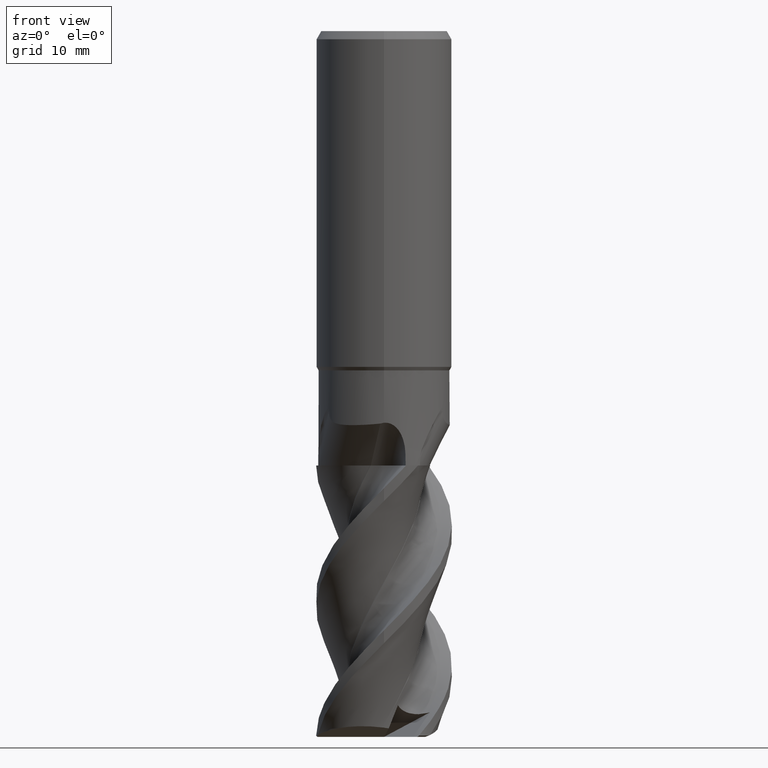
[diagram: clean part render]
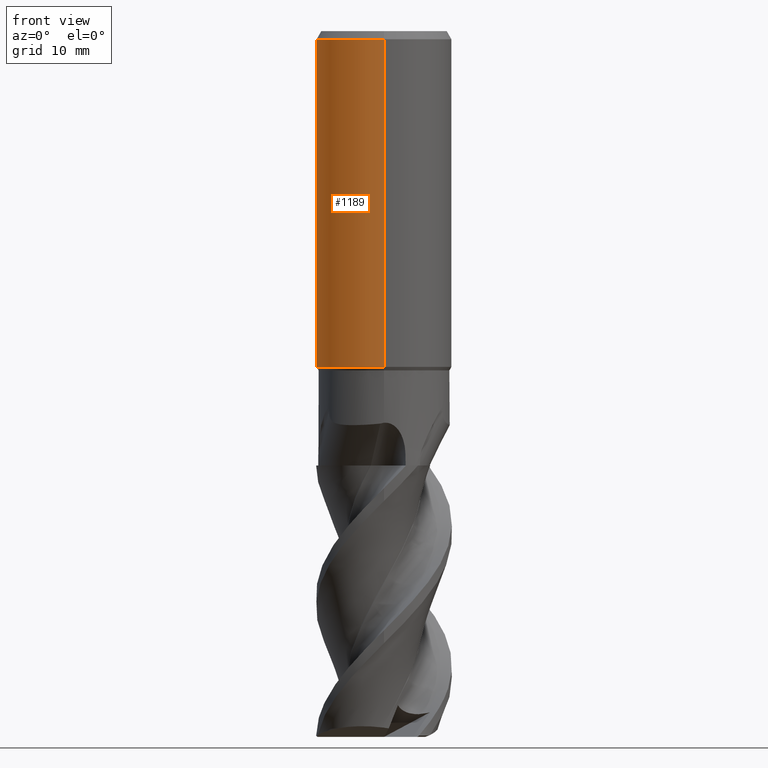
[diagram: same view with one face highlighted and labeled with its STEP entity id]
A machine part, front view. The second image highlights one B-rep face of the part: STEP entity #1189.
In plain terms, the highlighted cylindrical surface (partial cylindrical patch) has radius 10 mm, axis along (-0, -0, 1).
Its self-contained STEP definition (entity closure, byte-faithful):
#495=VERTEX_POINT('',#1353);
#499=EDGE_CURVE('',#747,#719,#1357,.T.);
#543=VERTEX_POINT('',#1405);
#605=EDGE_CURVE('',#543,#1059,#1477,.T.);
#611=VERTEX_POINT('',#1483);
#617=EDGE_CURVE('',#625,#543,#1489,.T.);
#625=VERTEX_POINT('',#1497);
#633=EDGE_CURVE('',#495,#1097,#1505,.T.);
#661=VERTEX_POINT('',#1535);
#671=VERTEX_POINT('',#1545);
#707=EDGE_CURVE('',#1209,#625,#1584,.T.);
#719=VERTEX_POINT('',#1596);
#747=VERTEX_POINT('',#1628);
#945=EDGE_CURVE('',#1097,#1209,#1844,.T.);
#951=EDGE_CURVE('',#671,#747,#1850,.T.);
#959=EDGE_CURVE('',#495,#611,#1858,.T.);
#1015=VERTEX_POINT('',#1920);
#1059=VERTEX_POINT('',#1969);
#1091=VERTEX_POINT('',#2001);
#1097=VERTEX_POINT('',#2007);
#1099=EDGE_CURVE('',#1155,#671,#2009,.T.);
#1113=EDGE_CURVE('',#1015,#1091,#2024,.T.);
#1131=EDGE_CURVE('',#719,#611,#2044,.T.);
#1135=EDGE_CURVE('',#661,#1015,#2048,.T.);
#1155=VERTEX_POINT('',#2068);
#1189=ADVANCED_FACE('',(#2110,#2111),#2112,.T.);
#1197=EDGE_CURVE('',#1091,#661,#2121,.T.);
#1209=VERTEX_POINT('',#2133);
#1225=EDGE_CURVE('',#1059,#1155,#2150,.T.);
#1353=CARTESIAN_POINT('',(1.22460635382238E-015,-10.0,-49.48));
#1357=ELLIPSE('',#2927,14.142135623731,10.0);
#1405=CARTESIAN_POINT('',(-5.72363520850167,8.2,-19.5));
#1477=LINE('',#4191,#4192);
#1483=CARTESIAN_POINT('',(0.0,10.0,-49.48));
#1489=ELLIPSE('',#4213,14.1421356237309,10.0);
#1497=CARTESIAN_POINT('',(-1.22460635382238E-015,10.0,-17.7));
#1505=LINE('',#4242,#4243);
#1535=CARTESIAN_POINT('',(-0.0316227370731222,9.99995,-36.2160908087156));
#1545=CARTESIAN_POINT('',(-0.0316227370732062,9.99995,-32.8094136196901));
#1584=LINE('',#4516,#4517);
#1596=CARTESIAN_POINT('',(-1.22460635382238E-015,10.0,-32.3));
#1628=CARTESIAN_POINT('',(-0.0316227370748053,9.99994999999999,-32.29995));
#1844=CIRCLE('',#6859,10.0);
#1850=LINE('',#6866,#6867);
#1858=CIRCLE('',#6940,10.0);
#1920=CARTESIAN_POINT('',(-0.0316227370732325,9.99995,-33.3020962430548));
#1969=CARTESIAN_POINT('',(-5.72363520850167,8.2,-30.5));
#2001=CARTESIAN_POINT('',(-2.97121348113491,9.54839727124517,-34.7513633984255));
#2007=CARTESIAN_POINT('',(1.22460635382238E-015,-10.0,-1.2));
#2009=B_SPLINE_CURVE_WITH_KNOTS('',3,(#8501,#8502,#8503,#8504,#8505,#8506,#8507,#8508,#8509,#8510,#8511,#8512,#8513,#8514,#8515,#8516,#8517,#8518,#8519,#8520,#8521,#8522,#8523,#8524),.UNSPECIFIED.,.F.,.F.,(4,2,2,2,2,2,2,2,2,2,2,4),(7.46791014288792,7.96541256832062,8.46291499375333,8.96041741918603,9.45791984461874,9.95542227005144,10.4516566009806,10.9478909319097,11.4441252628388,11.940359593768,12.4400189088528,12.9396782239377),.UNSPECIFIED.);
#2024=ELLIPSE('',#8543,11.1492843204286,10.0);
#2044=LINE('',#8644,#8645);
#2048=LINE('',#8650,#8651);
#2068=CARTESIAN_POINT('',(-1.37837352153135,9.90454877493878,-32.2045487749388));
#2110=FACE_OUTER_BOUND('',#9094,.T.);
#2111=FACE_BOUND('',#9095,.T.);
#2112=CYLINDRICAL_SURFACE('',#9096,10.0);
#2121=B_SPLINE_CURVE_WITH_KNOTS('',3,(#9372,#9373,#9374,#9375,#9376,#9377,#9378,#9379,#9380,#9381,#9382,#9383,#9384,#9385,#9386,#9387),.UNSPECIFIED.,.F.,.F.,(4,2,2,2,2,2,2,4),(13.0822518574034,13.7710650298006,14.4599721384425,15.1488792470844,15.8377863557263,16.5266934643682,17.2143253597037,17.9019572550391),.UNSPECIFIED.);
#2133=CARTESIAN_POINT('',(0.0,10.0,-1.2));
#2150=ELLIPSE('',#9486,14.142135623731,10.0);
#2927=AXIS2_PLACEMENT_3D('',#9846,#9847,#9848);
#4191=CARTESIAN_POINT('',(-5.72363520850167,8.2,-25.0));
#4192=VECTOR('',#10030,1.0);
#4213=AXIS2_PLACEMENT_3D('',#10037,#10038,#10039);
#4242=CARTESIAN_POINT('',(1.22460635382238E-015,-10.0,-25.34));
#4243=VECTOR('',#10048,1.0);
#4516=CARTESIAN_POINT('',(-1.22460635382238E-015,10.0,-25.34));
#4517=VECTOR('',#10143,1.0);
#6859=AXIS2_PLACEMENT_3D('',#10415,#10416,#10417);
#6866=CARTESIAN_POINT('',(-0.0316227370732325,9.99995,-32.8481638361144));
#6867=VECTOR('',#10418,1.0);
#6940=AXIS2_PLACEMENT_3D('',#10419,#10420,#10421);
#8501=CARTESIAN_POINT('',(-2.25082235878216,9.74339769840102,-29.6979143059435));
#8502=CARTESIAN_POINT('',(-2.28428747604402,9.73566692148997,-29.868085013128));
#8503=CARTESIAN_POINT('',(-2.30023075964271,9.73185174837726,-30.0393774783232));
#8504=CARTESIAN_POINT('',(-2.30023075964271,9.73185174837726,-30.371045761945));
#8505=CARTESIAN_POINT('',(-2.28428747604402,9.73566692148997,-30.5423382271401));
#8506=CARTESIAN_POINT('',(-2.2173572415203,9.75112847531207,-30.8826796415091));
#8507=CARTESIAN_POINT('',(-2.16638705772463,9.76276094609619,-31.0517325196036));
#8508=CARTESIAN_POINT('',(-2.03184405267153,9.79164662722868,-31.3756449797371));
#8509=CARTESIAN_POINT('',(-1.94816459135741,9.80888962566933,-31.5307739246349));
#8510=CARTESIAN_POINT('',(-1.75498328939114,9.845287939757,-31.8175167437536));
#8511=CARTESIAN_POINT('',(-1.6454670217229,9.864399219561,-31.9491264862566));
#8512=CARTESIAN_POINT('',(-1.41245757243044,9.9004457650828,-32.1817869276279));
#8513=CARTESIAN_POINT('',(-1.28096853055741,9.91866458537594,-32.2909300875257));
#8514=CARTESIAN_POINT('',(-0.994483240421609,9.95147178149252,-32.4834771683638));
#8515=CARTESIAN_POINT('',(-0.839491019745936,9.96601953281724,-32.5668940012736));
#8516=CARTESIAN_POINT('',(-0.515949704964199,9.98799711651423,-32.7009762826222));
#8517=CARTESIAN_POINT('',(-0.347124906267056,9.99541714560543,-32.7517510345697));
#8518=CARTESIAN_POINT('',(-0.00741593589887704,10.0014401272571,-32.8183881929454));
#8519=CARTESIAN_POINT('',(0.163471348702014,10.0000319031412,-32.8342357388639));
#8520=CARTESIAN_POINT('',(0.495256413593663,9.98911712923564,-32.8342357388639));
#8521=CARTESIAN_POINT('',(0.666997772528588,9.97919681274295,-32.8181726138028));
#8522=CARTESIAN_POINT('',(1.00787833561816,9.95054954847196,-32.7509513896908));
#8523=CARTESIAN_POINT('',(1.17702218704656,9.93183333834353,-32.6998122829361));
#8524=CARTESIAN_POINT('',(1.33893612023062,9.90995711726049,-32.6324280132421));
#8543=AXIS2_PLACEMENT_3D('',#10569,#10570,#10571);
#8644=CARTESIAN_POINT('',(-1.22460635382238E-015,10.0,-25.34));
#8645=VECTOR('',#10601,1.0);
#8650=CARTESIAN_POINT('',(-0.0316227370732325,9.99995,-32.8481638361144));
#8651=VECTOR('',#10602,1.0);
#9094=EDGE_LOOP('',(#10711,#10712,#10713,#10714,#10715,#10716,#10717,#10718,#10719,#10720,#10721));
#9095=EDGE_LOOP('',(#10722,#10723,#10724));
#9096=AXIS2_PLACEMENT_3D('',#10725,#10726,#10727);
#9372=CARTESIAN_POINT('',(-3.064465144062,9.51887878801012,-34.619424718489));
#9373=CARTESIAN_POINT('',(-2.93207371977169,9.56150028927415,-34.8159031682856));
#9374=CARTESIAN_POINT('',(-2.78221330578179,9.60659017651691,-34.9961024951607));
#9375=CARTESIAN_POINT('',(-2.46338958635805,9.6932453227427,-35.3150755115873));
#9376=CARTESIAN_POINT('',(-2.2831818263397,9.73793998544854,-35.4650893942677));
#9377=CARTESIAN_POINT('',(-1.89006279967406,9.82181536300732,-35.7302027828549));
#9378=CARTESIAN_POINT('',(-1.67714982712961,9.86092398085721,-35.8453225636327));
#9379=CARTESIAN_POINT('',(-1.23181074870496,9.92639388610597,-36.0307928721989));
#9380=CARTESIAN_POINT('',(-0.998993982717713,9.95276140285555,-36.1012897100344));
#9381=CARTESIAN_POINT('',(-0.529421014680235,9.98875176931193,-36.1940203935694));
#9382=CARTESIAN_POINT('',(-0.292657869671584,9.99835406091206,-36.2162270569585));
#9383=CARTESIAN_POINT('',(0.166179351363574,10.0012460192168,-36.2162270569585));
#9384=CARTESIAN_POINT('',(0.402624036141334,9.99465558216676,-36.1941010422937));
#9385=CARTESIAN_POINT('',(0.871759467236618,9.96470178941006,-36.1015888545499));
#9386=CARTESIAN_POINT('',(1.10445661059111,9.94135916450407,-36.0312284120675));
#9387=CARTESIAN_POINT('',(1.32707291318415,9.91155272815985,-35.9386212624839));
#9486=AXIS2_PLACEMENT_3D('',#10754,#10755,#10756);
#9846=CARTESIAN_POINT('',(0.0,0.0,-22.3));
#9847=DIRECTION('',(0.0,-0.707106781186548,-0.707106781186548));
#9848=DIRECTION('',(0.0,0.707106781186547,-0.707106781186547));
#10030=DIRECTION('',(0.0,0.0,-1.0));
#10037=CARTESIAN_POINT('',(0.0,0.0,-27.7));
#10038=DIRECTION('',(0.0,-0.707106781186547,0.707106781186548));
#10039=DIRECTION('',(0.0,0.707106781186548,0.707106781186547));
#10048=DIRECTION('',(-0.0,-0.0,1.0));
#10143=DIRECTION('',(0.0,0.0,-1.0));
#10415=CARTESIAN_POINT('',(0.0,0.0,-1.2));
#10416=DIRECTION('',(0.0,0.0,-1.0));
#10417=DIRECTION('',(0.0,1.0,0.0));
#10418=DIRECTION('',(-0.0,-0.0,1.0));
#10419=CARTESIAN_POINT('',(0.0,0.0,-49.48));
#10420=DIRECTION('',(0.0,0.0,-1.0));
#10421=DIRECTION('',(0.0,1.0,0.0));
#10569=CARTESIAN_POINT('',(0.0,0.0,-33.2865057074349));
#10570=DIRECTION('',(-0.442195774284071,0.0,0.896918556617774));
#10571=DIRECTION('',(0.896918556617774,-0.0,0.442195774284071));
#10601=DIRECTION('',(0.0,0.0,-1.0));
#10602=DIRECTION('',(-0.0,-0.0,1.0));
#10711=ORIENTED_EDGE('',*,*,#707,.T.);
#10712=ORIENTED_EDGE('',*,*,#617,.T.);
#10713=ORIENTED_EDGE('',*,*,#605,.T.);
#10714=ORIENTED_EDGE('',*,*,#1225,.T.);
#10715=ORIENTED_EDGE('',*,*,#1099,.T.);
#10716=ORIENTED_EDGE('',*,*,#951,.T.);
#10717=ORIENTED_EDGE('',*,*,#499,.T.);
#10718=ORIENTED_EDGE('',*,*,#1131,.T.);
#10719=ORIENTED_EDGE('',*,*,#959,.F.);
#10720=ORIENTED_EDGE('',*,*,#633,.T.);
#10721=ORIENTED_EDGE('',*,*,#945,.T.);
#10722=ORIENTED_EDGE('',*,*,#1197,.T.);
#10723=ORIENTED_EDGE('',*,*,#1135,.T.);
#10724=ORIENTED_EDGE('',*,*,#1113,.T.);
#10725=CARTESIAN_POINT('',(0.0,0.0,-25.34));
#10726=DIRECTION('',(-0.0,-0.0,1.0));
#10727=DIRECTION('',(0.0,1.0,0.0));
#10754=CARTESIAN_POINT('',(0.0,0.0,-22.3));
#10755=DIRECTION('',(0.0,-0.707106781186548,-0.707106781186548));
#10756=DIRECTION('',(0.0,0.707106781186547,-0.707106781186547));